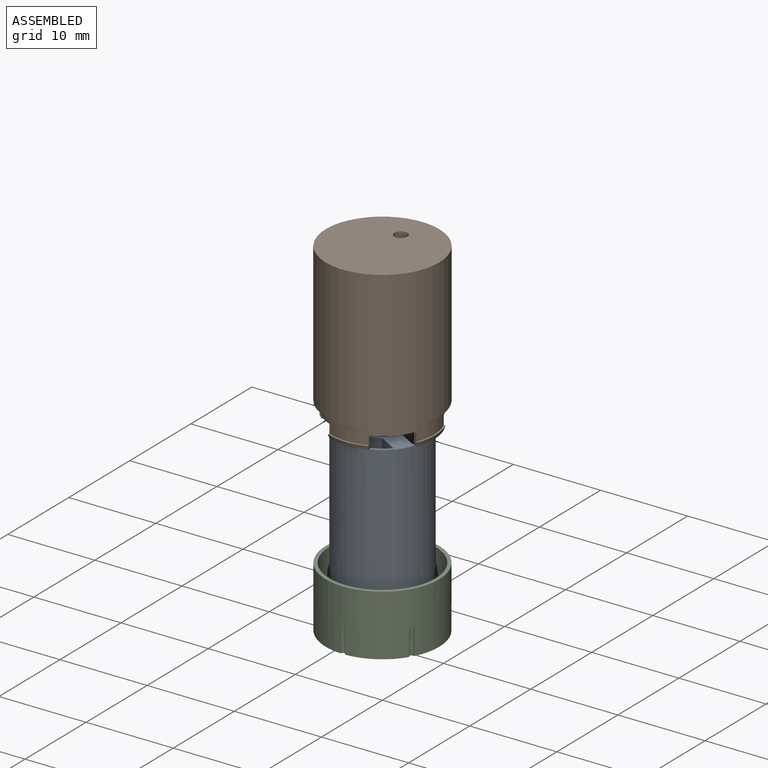
[diagram: assembled view]
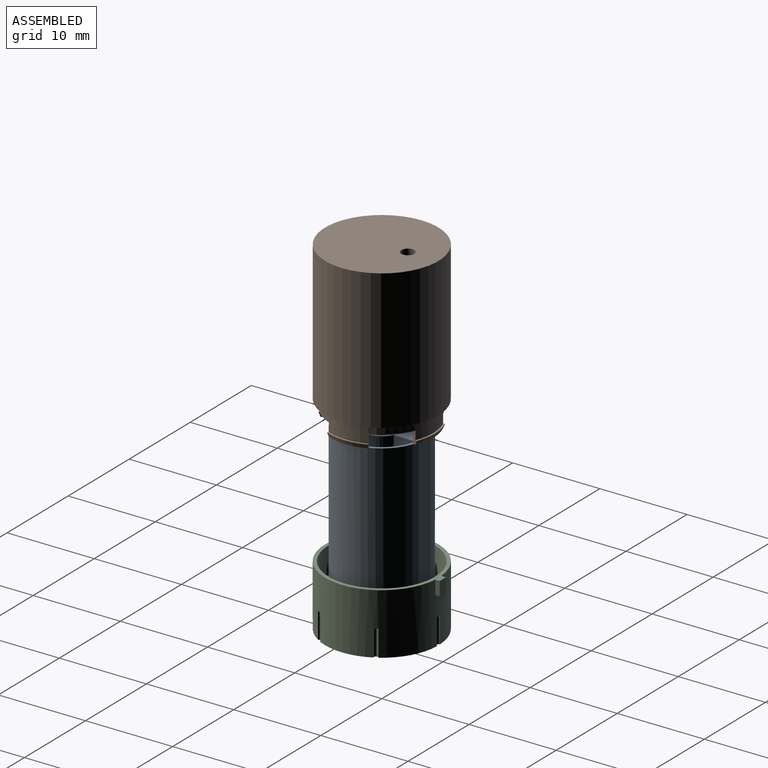
[diagram: assembled view, second angle]
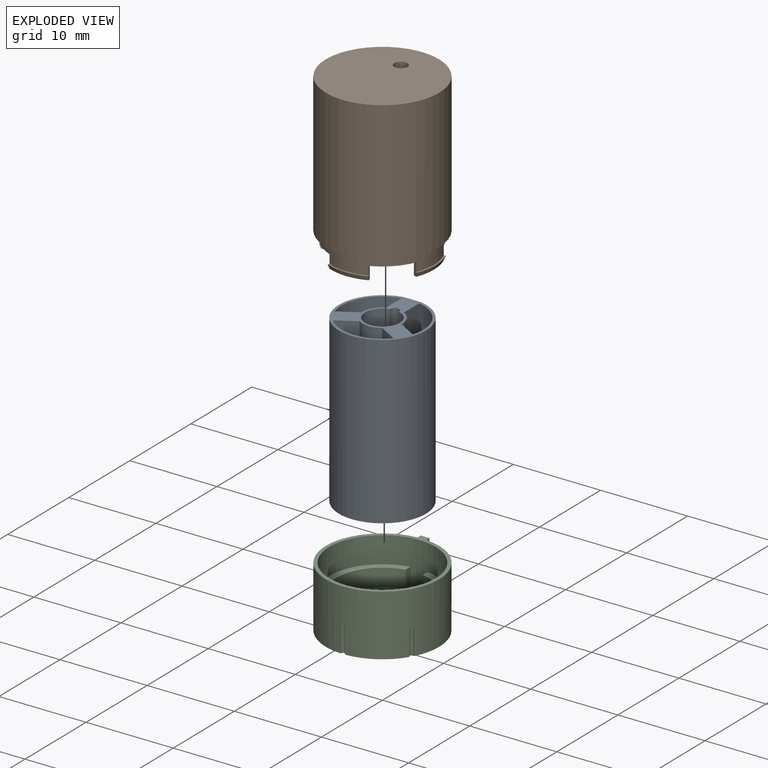
[diagram: exploded view]
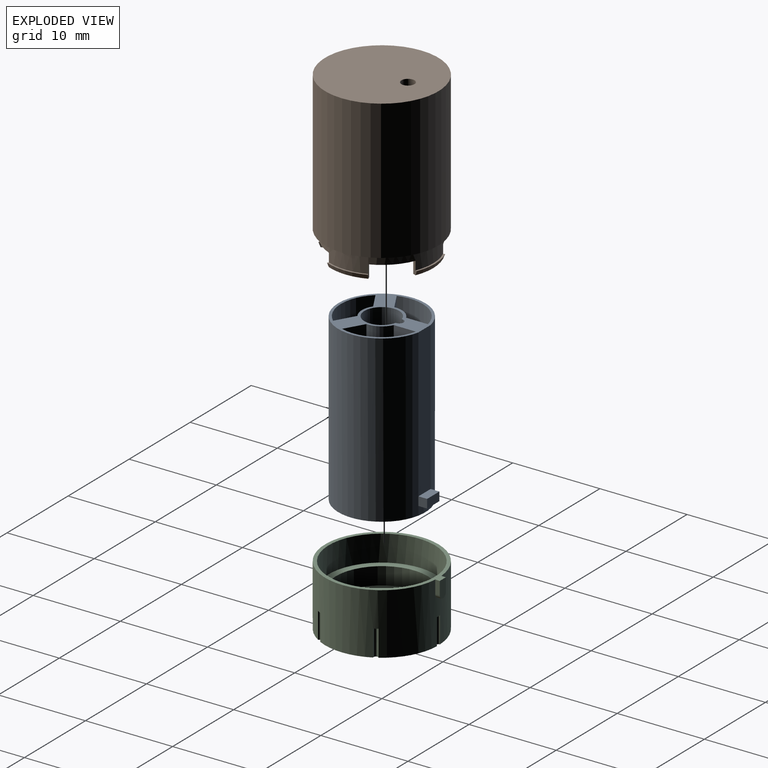
[diagram: exploded view, second angle]
ASSEMBLY  parts=3 mates=2
PART A: 29 faces, bbox 10x10.9x19 mm
  f0: plane 17x2mm, normal (0,-1,0), area 34mm2, adj f1,f2,f24
  f1: plane 10x9.9mm, normal (0,0,1), area 27.3mm2, adj f0,f2,f4,f5,f6,f7,f8,f9
  f2: cylinder r=5mm len=19mm, axis (0,0,-1), area 560.7mm2, adj f0,f1,f3,f25,f26,f27
  f3: plane 10x10mm, normal (0,0,-1), area 60.9mm2, adj f2,f4,f5,f21,f22,f23
  f4: cylinder r=0.5mm len=19mm, axis (0,0,1), area 32.2mm2, adj f1,f3,f5
  f5: cylinder r=2mm len=19mm, axis (0,0,1), area 219.7mm2, adj f1,f3,f4
  f6: cylinder r=2.3mm len=14mm, axis (0,0,1), area 38.5mm2, adj f1,f7,f9,f10
  f7: plane 14x2.52mm, normal (1,0,0), area 35.3mm2, adj f1,f6,f8,f10
  f8: cylinder r=4.7mm len=14mm, axis (0,0,1), area 109.6mm2, adj f1,f7,f9,f10
  f9: plane 14x2.18mm, normal (0.5,-0.87,0), area 35.3mm2, adj f1,f6,f8,f10
  f10: plane 6.02x3.7mm, normal (0,0,1), area 11.2mm2, adj f6,f7,f8,f9,f23
  f11: cylinder r=2.3mm len=14mm, axis (0,0,1), area 38.5mm2, adj f1,f12,f14,f15
  f12: plane 14x2.18mm, normal (-0.5,-0.87,0), area 35.3mm2, adj f1,f11,f13,f15
  f13: cylinder r=4.7mm len=14mm, axis (0,0,1), area 109.6mm2, adj f1,f12,f14,f15
  f14: plane 14x2.52mm, normal (-1,0,0), area 35.3mm2, adj f1,f11,f13,f15
  f15: plane 6.02x3.7mm, normal (0,0,1), area 11.2mm2, adj f11,f12,f13,f14,f22
  f16: cylinder r=2.3mm len=14mm, axis (0,0,1), area 38.5mm2, adj f1,f17,f19,f20
  f17: plane 14x2.18mm, normal (-0.5,0.87,0), area 35.3mm2, adj f1,f16,f18,f20
  f18: cylinder r=4.7mm len=14mm, axis (0,0,1), area 109.6mm2, adj f1,f17,f19,f20
  f19: plane 14x2.18mm, normal (0.5,0.87,0), area 35.3mm2, adj f1,f16,f18,f20
  f20: plane 6.95x2.8mm, normal (0,0,1), area 11.2mm2, adj f16,f17,f18,f19,f21
  f21: cylinder r=0.7mm len=5mm, axis (0,0,-1), area 22mm2, adj f3,f20
  f22: cylinder r=0.7mm len=5mm, axis (0,0,-1), area 22mm2, adj f3,f15
  f23: cylinder r=0.7mm len=5mm, axis (0,0,-1), area 22mm2, adj f3,f10
  f24: plane 2x1mm, normal (0,0,1), area 2mm2, adj f0,f25,f27,f28
  f25: plane 1x1mm, normal (-1,0,0), area 1mm2, adj f2,f24,f26,f28
  f26: plane 2x1mm, normal (0,0,-1), area 1.9mm2, adj f2,f25,f27,f28
  f27: plane 1x1mm, normal (1,0,0), area 1mm2, adj f2,f24,f26,f28
  f28: plane 2x1mm, normal (0,-1,0), area 2mm2, adj f24,f25,f26,f27
PART B: 37 faces, bbox 13x13x18.5 mm
  f0: cylinder r=1.9mm len=3.1mm, axis (0,0,-1), area 10.9mm2, adj f11,f34,f35
  f1: cylinder r=1.9mm len=3.1mm, axis (0,0,-1), area 10.9mm2, adj f2,f11,f36
  f2: plane 3.1x0.8mm, normal (0,0,1), area 1.7mm2, adj f1,f36
  f3: plane 3.35x3.35mm, normal (0,0,1), area 1.8mm2, adj f10,f12,f20,f22
  f4: plane 3.35x3.35mm, normal (0,0,1), area 1.8mm2, adj f10,f12,f17,f19
  f5: plane 3.35x3.35mm, normal (0,0,1), area 1.8mm2, adj f10,f12,f14,f16
  f6: plane 3.35x3.35mm, normal (0,0,1), area 1.8mm2, adj f10,f12,f13,f23
  f7: cylinder r=6.5mm len=16mm, axis (0,0,-1), area 653.5mm2, adj f8,f9
  f8: plane 13x13mm, normal (0,0,1), area 23.4mm2, adj f7,f10
  f9: plane 13x13mm, normal (0,0,-1), area 131mm2, adj f7,f33
  f10: cylinder r=5.9mm len=11.8mm, axis (0,0,-1), area 55.6mm2, adj f3,f4,f5,f6,f8,f13,f14,f16
  f11: plane 11x11mm, normal (0,0,1), area 89.8mm2, adj f0,f1,f12,f33,f35,f36
  f12: cylinder r=5.5mm len=17.5mm, axis (0,0,-1), area 578.8mm2, adj f3,f4,f5,f6,f11,f13,f14,f15
  f13: plane 1.5x0.55mm, normal (0.92,-0.38,0), area 0.7mm2, adj f6,f10,f12,f15,f25,f26
  f14: plane 1.5x0.55mm, normal (-0.92,-0.38,0), area 0.7mm2, adj f5,f10,f12,f15,f25,f26
  f15: plane 4.52x0.82mm, normal (0,0,1), area 1.8mm2, adj f12,f13,f14,f25
  f16: plane 1.5x0.55mm, normal (0.38,0.92,0), area 0.7mm2, adj f5,f10,f12,f18,f27,f28
  f17: plane 1.5x0.55mm, normal (0.38,-0.92,0), area 0.7mm2, adj f4,f10,f12,f18,f27,f28
  f18: plane 4.52x0.82mm, normal (0,0,1), area 1.8mm2, adj f12,f16,f17,f27
  f19: plane 1.5x0.55mm, normal (-0.92,0.38,0), area 0.7mm2, adj f4,f10,f12,f21,f29,f30
  f20: plane 1.5x0.55mm, normal (0.92,0.38,0), area 0.7mm2, adj f3,f10,f12,f21,f29,f30
  f21: plane 4.52x0.82mm, normal (0,0,1), area 1.8mm2, adj f12,f19,f20,f29
  f22: plane 1.5x0.55mm, normal (-0.38,-0.92,0), area 0.7mm2, adj f3,f10,f12,f24,f31,f32
  f23: plane 1.5x0.55mm, normal (-0.38,0.92,0), area 0.7mm2, adj f6,f10,f12,f24,f31,f32
  f24: plane 4.52x0.82mm, normal (0,0,1), area 1.8mm2, adj f12,f22,f23,f31
  f25: cone r=5.9mm half-angle=21.8deg, axis (0,0,-1), area 2.5mm2, adj f13,f14,f15,f26
  f26: plane 4.67x0.65mm, normal (0,0,-1), area 0.9mm2, adj f10,f13,f14,f25
  f27: cone r=5.9mm half-angle=21.8deg, axis (0,0,-1), area 2.5mm2, adj f16,f17,f18,f28
  f28: plane 4.67x0.65mm, normal (0,0,-1), area 0.9mm2, adj f10,f16,f17,f27
  f29: cone r=5.9mm half-angle=21.8deg, axis (0,0,-1), area 2.5mm2, adj f19,f20,f21,f30
  f30: plane 4.67x0.65mm, normal (0,0,-1), area 0.9mm2, adj f10,f19,f20,f29
  f31: cone r=5.9mm half-angle=21.8deg, axis (0,0,-1), area 2.5mm2, adj f22,f23,f24,f32
  f32: plane 4.67x0.65mm, normal (0,0,-1), area 0.9mm2, adj f10,f22,f23,f31
  f33: cylinder r=0.75mm len=1.5mm, axis (0,0,1), area 4.7mm2, adj f9,f11
  f34: plane 3.1x0.8mm, normal (0,0,1), area 1.7mm2, adj f0,f35
  f35: plane 3.1x3mm, normal (-1,0,0), area 9.3mm2, adj f0,f11,f34
  f36: plane 3.1x3mm, normal (1,0,0), area 9.3mm2, adj f1,f2,f11
PART C: 34 faces, bbox 13x13.5x7 mm
  f0: plane 13x12.99mm, normal (0,0,-1), area 119.7mm2, adj f1,f9,f10,f11,f12,f13,f14,f15
  f1: cylinder r=6.5mm len=13mm, axis (0,0,-1), area 275mm2, adj f0,f2,f18,f20,f21,f22,f23,f24
  f2: plane 13.5x13mm, normal (0,0,1), area 16.3mm2, adj f1,f3,f18,f19,f20
  f3: cylinder r=6.1mm len=12.2mm, axis (0,0,1), area 119mm2, adj f2,f4,f6,f7,f8
  f4: plane 12.2x12.12mm, normal (0,0,1), area 27mm2, adj f3,f5,f6,f7
  f5: cylinder r=5.3mm len=10.6mm, axis (0,0,1), area 62.6mm2, adj f4,f6,f7,f8
  f6: plane 2x0.81mm, normal (-1,0,0), area 1.6mm2, adj f3,f4,f5,f8
  f7: plane 2x0.81mm, normal (1,0,0), area 1.6mm2, adj f3,f4,f5,f8
  f8: plane 11.4x10.6mm, normal (0,0,1), area 77.4mm2, adj f3,f5,f6,f7,f9,f10,f11,f12
  f9: plane 2x0.58mm, normal (-1,0,0), area 1.2mm2, adj f0,f8,f10,f11
  f10: cylinder r=1.6mm len=3.2mm, axis (0,0,1), area 18.1mm2, adj f0,f8,f9,f12
  f11: plane 2x1mm, normal (0,-1,0), area 2mm2, adj f0,f8,f9,f12
  f12: plane 2x0.58mm, normal (1,0,0), area 1.2mm2, adj f0,f8,f10,f11
  f13: cylinder r=0.5mm len=2mm, axis (0,0,1), area 6.3mm2, adj f0,f8
  f14: cylinder r=0.5mm len=2mm, axis (0,0,1), area 6.3mm2, adj f0,f8
  f15: cylinder r=0.5mm len=2mm, axis (0,0,1), area 6.3mm2, adj f0,f8
  f16: cylinder r=0.5mm len=2mm, axis (0,0,1), area 6.3mm2, adj f0,f8
  f17: cylinder r=0.5mm len=2mm, axis (0,0,1), area 6.3mm2, adj f0,f8
  f18: plane 1.5x0.52mm, normal (1,0,0), area 0.8mm2, adj f1,f2,f19,f21
  f19: plane 2x1mm, normal (0,1,0), area 1.9mm2, adj f2,f18,f20,f21
  f20: plane 1.5x0.52mm, normal (-1,0,0), area 0.8mm2, adj f1,f2,f19,f21
  f21: cylinder r=0.5mm len=1mm, axis (0,1,0), area 0.8mm2, adj f1,f18,f19,f20
  f22: plane 0.46x0.37mm, normal (0,0,-1), area 0.1mm2, adj f1,f23
  f23: cylinder r=0.25mm len=3mm, axis (0,0,-1), area 2.3mm2, adj f0,f1,f22
  f24: plane 0.46x0.37mm, normal (0,0,-1), area 0.1mm2, adj f1,f25
  f25: cylinder r=0.25mm len=3mm, axis (0,0,-1), area 2.3mm2, adj f0,f1,f24
  f26: plane 0.5x0.25mm, normal (0,0,-1), area 0.1mm2, adj f1,f27
  f27: cylinder r=0.25mm len=3mm, axis (0,0,-1), area 2.3mm2, adj f0,f1,f26
  f28: plane 0.46x0.37mm, normal (0,0,-1), area 0.1mm2, adj f1,f29
  f29: cylinder r=0.25mm len=3mm, axis (0,0,-1), area 2.3mm2, adj f0,f1,f28
  f30: plane 0.46x0.37mm, normal (0,0,-1), area 0.1mm2, adj f1,f31
  f31: cylinder r=0.25mm len=3mm, axis (0,0,-1), area 2.3mm2, adj f0,f1,f30
  f32: plane 0.5x0.25mm, normal (0,0,-1), area 0.1mm2, adj f1,f33
  f33: cylinder r=0.25mm len=3mm, axis (0,0,-1), area 2.3mm2, adj f0,f1,f32
PLACE A rot(axis=(0,0,1),180deg) t=(0,0,2)mm
PLACE B rot(axis=(0,1,0),180deg) t=(0,0,39.85)mm
PLACE C at identity
MATE fastened C.f5 <-> A.f2  axis (0,0,1) through (0,0,2)mm
MATE slider A.f2 <-> B.f7  axis (0,0,-1) through (0,0,11.5)mm
